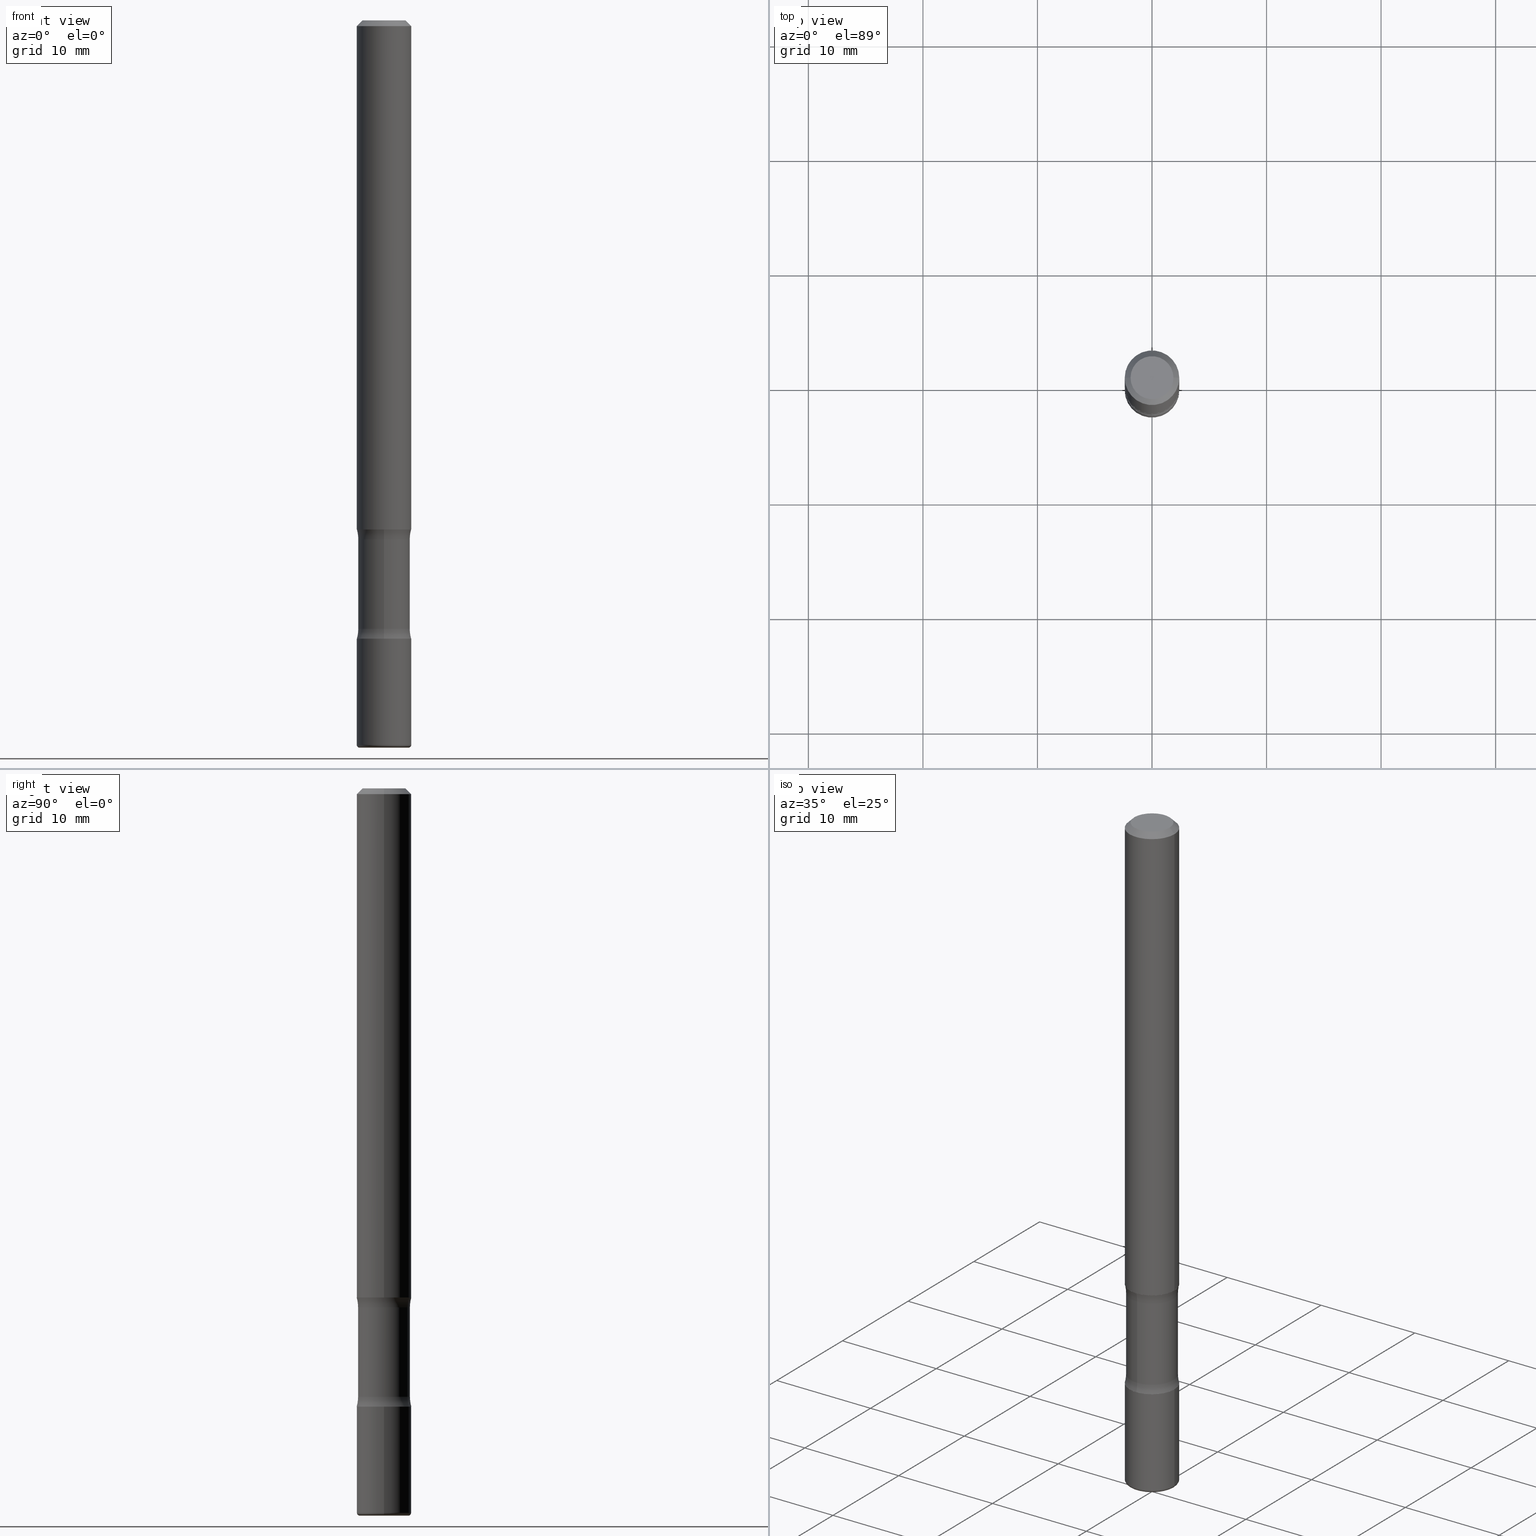
[diagram: canonical four-view strip — front | top / right | iso, engineering-drawing reading convention]
A machine part, canonical four-view strip (front | top / right | iso — engineering-drawing reading convention). The complete STEP part file that produces these views, byte-faithful:
ISO-10303-21;
HEADER;
FILE_DESCRIPTION (( 'STEP AP203' ),
    '1' );
FILE_NAME ('37772.STEP',
    '2024-03-02T00:11:34',
    ( '' ),
    ( '' ),
    'SwSTEP 2.0',
    'SolidWorks 2023',
    '' );
FILE_SCHEMA (( 'CONFIG_CONTROL_DESIGN' ));
ENDSEC;

DATA;
#1 = ADVANCED_FACE ( 'NONE', ( #195 ), #443, .T. ) ;
#2 = CARTESIAN_POINT ( 'NONE',  ( 5.110032292609207884E-29, -7.306245973522905960E-15, -2.091089789977795821 ) ) ;
#3 = DIRECTION ( 'NONE',  ( -2.445468806185136597E-29, 3.491481338843145583E-15, 1.000000000000000000 ) ) ;
#4 = VERTEX_POINT ( 'NONE', #237 ) ;
#5 = DIRECTION ( 'NONE',  ( 6.982962677686265922E-15, 1.000000000000000000, -2.913971193241879977E-15 ) ) ;
#6 = ADVANCED_FACE ( 'NONE', ( #497 ), #24, .T. ) ;
#7 = CARTESIAN_POINT ( 'NONE',  ( 5.113694852322927974E-29, -7.301000979552905916E-15, -2.091089789977795821 ) ) ;
#8 = CIRCLE ( 'NONE', #387, 0.09374999999999981959 ) ;
#9 = DIRECTION ( 'NONE',  ( -2.445468806185136877E-29, 3.491481338843145188E-15, 1.000000000000000000 ) ) ;
#10 = CIRCLE ( 'NONE', #114, 0.01000000000000008174 ) ;
#11 = EDGE_CURVE ( 'NONE', #555, #4, #404, .T. ) ;
#12 = DIRECTION ( 'NONE',  ( -2.445468806185136597E-29, 3.491481338843145583E-15, 1.000000000000000000 ) ) ;
#13 = DIRECTION ( 'NONE',  ( 2.438088387897960049E-29, -3.491481338843145188E-15, -1.000000000000000000 ) ) ;
#14 = ORIENTED_EDGE ( 'NONE', *, *, #361, .F. ) ;
#15 = EDGE_CURVE ( 'NONE', #337, #152, #106, .T. ) ;
#16 = CONICAL_SURFACE ( 'NONE', #261, 0.09374999999999981959, 0.7853981633974472798 ) ;
#17 = CC_DESIGN_APPROVAL ( #487, ( #310 ) ) ;
#18 = DESIGN_CONTEXT ( 'detailed design', #390, 'design' ) ;
#19 = CARTESIAN_POINT ( 'NONE',  ( 0.09375000000000002776, -6.546527510330876027E-16, 4.571415727308691207E-30 ) ) ;
#20 = EDGE_CURVE ( 'NONE', #336, #330, #447, .T. ) ;
#21 = DATE_TIME_ROLE ( 'creation_date' ) ;
#22 = CARTESIAN_POINT ( 'NONE',  ( 6.113672015462842613E-29, -8.728703347107864943E-15, -2.500000000000000000 ) ) ;
#23 = AXIS2_PLACEMENT_3D ( 'NONE', #166, #305, #386 ) ;
#24 = CYLINDRICAL_SURFACE ( 'NONE', #110, 0.09374999999999991673 ) ;
#25 = TOROIDAL_SURFACE ( 'NONE', #533, 0.08375000000000003275, 0.01000000000000008174 ) ;
#26 = DATE_AND_TIME ( #241, #358 ) ;
#27 = DIRECTION ( 'NONE',  ( -2.445468806185136597E-29, 3.491481338843145583E-15, 1.000000000000000000 ) ) ;
#28 = DIRECTION ( 'NONE',  ( -2.445468806185136597E-29, 3.491481338843145583E-15, 1.000000000000000000 ) ) ;
#29 = FACE_OUTER_BOUND ( 'NONE', #350, .T. ) ;
#30 = ORIENTED_EDGE ( 'NONE', *, *, #20, .T. ) ;
#31 = CARTESIAN_POINT ( 'NONE',  ( 5.196621213143415268E-29, -7.419397845041685201E-15, -2.125000000000000000 ) ) ;
#32 = CC_DESIGN_PERSON_AND_ORGANIZATION_ASSIGNMENT ( #411, #181, ( #235 ) ) ;
#33 = CIRCLE ( 'NONE', #234, 0.09375000000000002776 ) ;
#34 = ORIENTED_EDGE ( 'NONE', *, *, #82, .F. ) ;
#35 = DIRECTION ( 'NONE',  ( 6.982962677686265922E-15, 1.000000000000000000, -2.913971193241877611E-15 ) ) ;
#36 = EDGE_LOOP ( 'NONE', ( #312, #343, #318, #277 ) ) ;
#37 = DIRECTION ( 'NONE',  ( 2.553476385947133355E-29, -3.336808337214295667E-15, -1.000000000000000000 ) ) ;
#38 = EDGE_CURVE ( 'NONE', #423, #170, #216, .T. ) ;
#39 = EDGE_CURVE ( 'NONE', #205, #364, #121, .T. ) ;
#40 = ORIENTED_EDGE ( 'NONE', *, *, #168, .F. ) ;
#41 = PERSON_AND_ORGANIZATION_ROLE ( 'design_supplier' ) ;
#42 = AXIS2_PLACEMENT_3D ( 'NONE', #256, #292, #81 ) ;
#43 = FACE_OUTER_BOUND ( 'NONE', #366, .T. ) ;
#44 = DIRECTION ( 'NONE',  ( 6.982962677686265922E-15, 1.000000000000000000, -3.336808337214296061E-15 ) ) ;
#45 = ORIENTED_EDGE ( 'NONE', *, *, #536, .F. ) ;
#46 = DIRECTION ( 'NONE',  ( 6.982962677686265133E-15, 1.000000000000000000, -3.067338098149350666E-15 ) ) ;
#47 = CARTESIAN_POINT ( 'NONE',  ( -6.110131029264649859E-16, -0.08906250000000860700, -2.499999999999999556 ) ) ;
#48 = DATE_TIME_ROLE ( 'classification_date' ) ;
#49 = ORIENTED_EDGE ( 'NONE', *, *, #113, .F. ) ;
#50 = CARTESIAN_POINT ( 'NONE',  ( -0.09374999999999981959, 5.848231242562233185E-16, -0.02000000000000001776 ) ) ;
#51 = DATE_AND_TIME ( #460, #263 ) ;
#52 = AXIS2_PLACEMENT_3D ( 'NONE', #544, #445, #365 ) ;
#53 = VECTOR ( 'NONE', #512, 39.37007874015748143 ) ;
#54 = CARTESIAN_POINT ( 'NONE',  ( 8.726388948129611336E-30, -1.361158663068067946E-14, -2.125000000000000000 ) ) ;
#55 = FACE_OUTER_BOUND ( 'NONE', #280, .T. ) ;
#56 = DIRECTION ( 'NONE',  ( -2.445468806185136597E-29, 3.491481338843145583E-15, 1.000000000000000000 ) ) ;
#57 = CARTESIAN_POINT ( 'NONE',  ( -0.09375000000000005551, -8.027654718944337792E-15, -2.489999999999999769 ) ) ;
#58 = CARTESIAN_POINT ( 'NONE',  ( 4.279570410823988484E-29, -6.110092342975504671E-15, -1.750000000000000000 ) ) ;
#59 = EDGE_CURVE ( 'NONE', #127, #152, #482, .T. ) ;
#60 = CARTESIAN_POINT ( 'NONE',  ( 4.890937612370276662E-31, -6.982962677686296539E-17, -0.02000000000000001776 ) ) ;
#61 = DIRECTION ( 'NONE',  ( 6.982962677686265922E-15, 1.000000000000000000, -2.913971193241877611E-15 ) ) ;
#62 = CIRCLE ( 'NONE', #161, 0.07374999999999984346 ) ;
#63 = ORIENTED_EDGE ( 'NONE', *, *, #559, .T. ) ;
#64 = CIRCLE ( 'NONE', #491, 0.09375000000000009714 ) ;
#65 = EDGE_CURVE ( 'NONE', #93, #218, #511, .T. ) ;
#66 = ORIENTED_EDGE ( 'NONE', *, *, #73, .F. ) ;
#67 = CYLINDRICAL_SURFACE ( 'NONE', #146, 0.09375000000000002776 ) ;
#68 = DIRECTION ( 'NONE',  ( -2.445468806185136597E-29, 3.491481338843145583E-15, 1.000000000000000000 ) ) ;
#69 = AXIS2_PLACEMENT_3D ( 'NONE', #546, #105, #194 ) ;
#70 = CC_DESIGN_APPROVAL ( #406, ( #235 ) ) ;
#71 = CARTESIAN_POINT ( 'NONE',  ( 6.154174857873591467E-29, -8.670700971497045879E-15, -2.500000000000000000 ) ) ;
#72 = DIRECTION ( 'NONE',  ( 1.000000000000000000, -6.982962677686263555E-15, 0.000000000000000000 ) ) ;
#73 = EDGE_CURVE ( 'NONE', #183, #337, #272, .T. ) ;
#74 = ORIENTED_EDGE ( 'NONE', *, *, #15, .F. ) ;
#75 = DATE_AND_TIME ( #505, #79 ) ;
#76 = DIRECTION ( 'NONE',  ( 2.553476385947133355E-29, -3.336808337214295667E-15, -1.000000000000000000 ) ) ;
#77 = ORIENTED_EDGE ( 'NONE', *, *, #517, .T. ) ;
#78 = AXIS2_PLACEMENT_3D ( 'NONE', #2, #178, #46 ) ;
#79 = LOCAL_TIME ( 19, 11, 34.00000000000000000, #453 ) ;
#80 = ORIENTED_EDGE ( 'NONE', *, *, #321, .T. ) ;
#81 = DIRECTION ( 'NONE',  ( 6.860497997771531562E-15, 1.000000000000000000, 0.000000000000000000 ) ) ;
#82 = EDGE_CURVE ( 'NONE', #330, #152, #416, .T. ) ;
#83 = PERSON_AND_ORGANIZATION ( #224, #484 ) ;
#84 = ORIENTED_EDGE ( 'NONE', *, *, #433, .T. ) ;
#85 = VERTEX_POINT ( 'NONE', #477 ) ;
#86 = DIRECTION ( 'NONE',  ( 2.553476385947133355E-29, -3.336808337214295667E-15, -1.000000000000000000 ) ) ;
#87 = CARTESIAN_POINT ( 'NONE',  ( 0.09375000000000005551, -9.348441284752520009E-15, -2.489999999999999769 ) ) ;
#88 = AXIS2_PLACEMENT_3D ( 'NONE', #543, #304, #134 ) ;
#89 = ADVANCED_FACE ( 'NONE', ( #384 ), #531, .F. ) ;
#90 = CIRCLE ( 'NONE', #42, 0.1250000000000000278 ) ;
#91 = DIRECTION ( 'NONE',  ( 2.438088387897960049E-29, -3.491481338843145188E-15, -1.000000000000000000 ) ) ;
#92 = LINE ( 'NONE', #47, #522 ) ;
#93 = VERTEX_POINT ( 'NONE', #314 ) ;
#94 = CARTESIAN_POINT ( 'NONE',  ( 5.110032292609207884E-29, -7.306245973522905960E-15, -2.091089789977795821 ) ) ;
#95 = DIMENSIONAL_EXPONENTS ( 1.000000000000000000, 0.000000000000000000, 0.000000000000000000, 0.000000000000000000, 0.000000000000000000, 0.000000000000000000, 0.000000000000000000 ) ;
#96 = APPROVAL_STATUS ( 'not_yet_approved' ) ;
#97 = COORDINATED_UNIVERSAL_TIME_OFFSET ( 5, 0, .BEHIND. ) ;
#98 = ORIENTED_EDGE ( 'NONE', *, *, #257, .F. ) ;
#99 = AXIS2_PLACEMENT_3D ( 'NONE', #266, #177, #419 ) ;
#100 = DIRECTION ( 'NONE',  ( 1.000000000000000000, -6.982962677686265922E-15, 4.876176775795935793E-29 ) ) ;
#101 = ORIENTED_EDGE ( 'NONE', *, *, #285, .T. ) ;
#102 = ADVANCED_FACE ( 'NONE', ( #351 ), #448, .T. ) ;
#103 = CARTESIAN_POINT ( 'NONE',  ( -6.270923951087521301E-16, -0.08906250000000723310, -2.091089789977795377 ) ) ;
#104 = ORIENTED_EDGE ( 'NONE', *, *, #311, .F. ) ;
#105 = DIRECTION ( 'NONE',  ( 2.445468806185136597E-29, -3.491481338843145583E-15, -1.000000000000000000 ) ) ;
#106 = LINE ( 'NONE', #537, #399 ) ;
#107 = DIRECTION ( 'NONE',  ( -2.445468806185136877E-29, 3.491481338843145188E-15, 1.000000000000000000 ) ) ;
#108 = DATE_AND_TIME ( #530, #282 ) ;
#109 = CYLINDRICAL_SURFACE ( 'NONE', #493, 0.08906249999999993339 ) ;
#110 = AXIS2_PLACEMENT_3D ( 'NONE', #328, #68, #494 ) ;
#111 = CARTESIAN_POINT ( 'NONE',  ( 4.279570410823988484E-29, -6.110092342975504671E-15, -1.750000000000000000 ) ) ;
#112 = AXIS2_PLACEMENT_3D ( 'NONE', #171, #37, #557 ) ;
#113 = EDGE_CURVE ( 'NONE', #383, #170, #490, .T. ) ;
#114 = AXIS2_PLACEMENT_3D ( 'NONE', #514, #126, #428 ) ;
#115 = ORIENTED_EDGE ( 'NONE', *, *, #414, .F. ) ;
#116 = APPROVAL_ROLE ( '' ) ;
#117 = CARTESIAN_POINT ( 'NONE',  ( 1.494790448192267349E-15, 0.2140624999999926614, -2.091089789977796265 ) ) ;
#118 = CYLINDRICAL_SURFACE ( 'NONE', #112, 0.08906249999999993339 ) ;
#119 = DIRECTION ( 'NONE',  ( 1.000000000000000000, -6.982962677686267499E-15, 0.000000000000000000 ) ) ;
#120 = ORIENTED_EDGE ( 'NONE', *, *, #150, .F. ) ;
#121 = CIRCLE ( 'NONE', #429, 0.08375000000000003275 ) ;
#122 = CIRCLE ( 'NONE', #200, 0.08906249999999994726 ) ;
#123 = APPROVAL_PERSON_ORGANIZATION ( #159, #406, #116 ) ;
#124 = EDGE_LOOP ( 'NONE', ( #464, #303, #515, #558 ) ) ;
#125 = CC_DESIGN_DATE_AND_TIME_ASSIGNMENT ( #51, #48, ( #502 ) ) ;
#126 = DIRECTION ( 'NONE',  ( -6.982962677686266711E-15, -1.000000000000000000, 3.491481338843145583E-15 ) ) ;
#127 = VERTEX_POINT ( 'NONE', #265 ) ;
#128 = EDGE_LOOP ( 'NONE', ( #215, #45, #425, #101 ) ) ;
#129 = FACE_OUTER_BOUND ( 'NONE', #158, .T. ) ;
#130 = PRODUCT ( '37772', '37772', '', ( #510 ) ) ;
#131 = DIRECTION ( 'NONE',  ( 1.000000000000000000, -6.982962677686266711E-15, 4.876176775795935793E-29 ) ) ;
#132 = CC_DESIGN_DATE_AND_TIME_ASSIGNMENT ( #197, #21, ( #235 ) ) ;
#133 = DIRECTION ( 'NONE',  ( 2.553476385947132794E-29, -3.336808337214295667E-15, -1.000000000000000000 ) ) ;
#134 = DIRECTION ( 'NONE',  ( 1.000000000000000000, -6.982962677686266711E-15, 4.876176775795935793E-29 ) ) ;
#135 = AXIS2_PLACEMENT_3D ( 'NONE', #420, #470, #374 ) ;
#136 = CARTESIAN_POINT ( 'NONE',  ( 6.089217327400989947E-29, -8.693788533719431716E-15, -2.489999999999999769 ) ) ;
#137 = FACE_OUTER_BOUND ( 'NONE', #353, .T. ) ;
#138 = PLANE ( 'NONE',  #151 ) ;
#139 =( NAMED_UNIT ( * ) PLANE_ANGLE_UNIT ( ) SI_UNIT ( $, .RADIAN. ) );
#140 = PLANE ( 'NONE',  #273 ) ;
#141 = VERTEX_POINT ( 'NONE', #87 ) ;
#142 = EDGE_CURVE ( 'NONE', #364, #555, #410, .T. ) ;
#143 = CARTESIAN_POINT ( 'NONE',  ( 4.279570410823988484E-29, -6.110092342975504671E-15, -1.750000000000000000 ) ) ;
#144 = EDGE_LOOP ( 'NONE', ( #225, #239 ) ) ;
#145 = DIRECTION ( 'NONE',  ( -1.000000000000000000, 6.982962677686267499E-15, 0.000000000000000000 ) ) ;
#146 = AXIS2_PLACEMENT_3D ( 'NONE', #288, #444, #496 ) ;
#147 = VERTEX_POINT ( 'NONE', #345 ) ;
#148 = ORIENTED_EDGE ( 'NONE', *, *, #39, .F. ) ;
#149 = VERTEX_POINT ( 'NONE', #347 ) ;
#150 = EDGE_CURVE ( 'NONE', #170, #383, #335, .T. ) ;
#151 = AXIS2_PLACEMENT_3D ( 'NONE', #54, #13, #230 ) ;
#152 = VERTEX_POINT ( 'NONE', #50 ) ;
#153 = COORDINATED_UNIVERSAL_TIME_OFFSET ( 5, 0, .BEHIND. ) ;
#154 = DIRECTION ( 'NONE',  ( -2.445468806185136597E-29, 3.491481338843145583E-15, 1.000000000000000000 ) ) ;
#155 = ADVANCED_FACE ( 'NONE', ( #129 ), #308, .F. ) ;
#156 = CARTESIAN_POINT ( 'NONE',  ( 4.325656488947447574E-29, -6.281246590105103764E-15, -1.783910210022204623 ) ) ;
#157 = DIRECTION ( 'NONE',  ( -2.445468806185136597E-29, 3.491481338843145583E-15, 1.000000000000000000 ) ) ;
#158 = EDGE_LOOP ( 'NONE', ( #319, #270 ) ) ;
#159 = PERSON_AND_ORGANIZATION ( #224, #484 ) ;
#160 = CARTESIAN_POINT ( 'NONE',  ( -0.07374999999999984346, 5.499083108677921624E-16, -3.723527850031186263E-30 ) ) ;
#161 = AXIS2_PLACEMENT_3D ( 'NONE', #231, #3, #131 ) ;
#162 = MANIFOLD_SOLID_BREP ( 'Body-Move/Copy2[2]', #457 ) ;
#163 = APPROVAL_ROLE ( '' ) ;
#164 = EDGE_LOOP ( 'NONE', ( #66, #396, #213, #74 ) ) ;
#165 = DIRECTION ( 'NONE',  ( 2.553476385947133355E-29, -3.336808337214295667E-15, -1.000000000000000000 ) ) ;
#166 = CARTESIAN_POINT ( 'NONE',  ( 1.494790448192259658E-15, 0.2140624999999937161, -1.783910210022205289 ) ) ;
#167 = SHAPE_DEFINITION_REPRESENTATION ( #550, #196 ) ;
#168 = EDGE_CURVE ( 'NONE', #147, #423, #242, .T. ) ;
#169 = PERSON_AND_ORGANIZATION ( #224, #484 ) ;
#170 = VERTEX_POINT ( 'NONE', #103 ) ;
#171 = CARTESIAN_POINT ( 'NONE',  ( 6.154174857873591467E-29, -8.670700971497045879E-15, -2.500000000000000000 ) ) ;
#172 = MANIFOLD_SOLID_BREP ( 'Body-Move/Copy2[1]', #325 ) ;
#173 = LINE ( 'NONE', #339, #53 ) ;
#174 = TOROIDAL_SURFACE ( 'NONE', #483, 0.2140624999999999889, 0.1250000000000000278 ) ;
#175 = PERSON_AND_ORGANIZATION ( #224, #484 ) ;
#176 = ORIENTED_EDGE ( 'NONE', *, *, #551, .F. ) ;
#177 = DIRECTION ( 'NONE',  ( -2.445468806185136597E-29, 3.491481338843145583E-15, 1.000000000000000000 ) ) ;
#178 = DIRECTION ( 'NONE',  ( 2.553476385947133355E-29, -3.336808337214295667E-15, -1.000000000000000000 ) ) ;
#179 = EDGE_CURVE ( 'NONE', #141, #555, #553, .T. ) ;
#180 = DIRECTION ( 'NONE',  ( -2.445468806185136597E-29, 3.491481338843145583E-15, 1.000000000000000000 ) ) ;
#181 = PERSON_AND_ORGANIZATION_ROLE ( 'creator' ) ;
#182 = AXIS2_PLACEMENT_3D ( 'NONE', #472, #91, #422 ) ;
#183 = VERTEX_POINT ( 'NONE', #403 ) ;
#184 = AXIS2_PLACEMENT_3D ( 'NONE', #409, #206, #499 ) ;
#185 = DIRECTION ( 'NONE',  ( 2.553476385947133355E-29, -3.336808337214295667E-15, -1.000000000000000000 ) ) ;
#186 = ADVANCED_FACE ( 'NONE', ( #538 ), #430, .T. ) ;
#187 = DIRECTION ( 'NONE',  ( 2.553476385947133355E-29, -3.336808337214295667E-15, -1.000000000000000000 ) ) ;
#188 = AXIS2_PLACEMENT_3D ( 'NONE', #31, #28, #204 ) ;
#189 = CC_DESIGN_APPROVAL ( #440, ( #502 ) ) ;
#190 =( LENGTH_UNIT ( ) NAMED_UNIT ( * ) SI_UNIT ( $, .METRE. ) );
#191 = CARTESIAN_POINT ( 'NONE',  ( 6.089217327400989947E-29, -8.693788533719431716E-15, -2.489999999999999769 ) ) ;
#192 = ORIENTED_EDGE ( 'NONE', *, *, #207, .F. ) ;
#193 = DIRECTION ( 'NONE',  ( 2.553476385947133355E-29, -3.336808337214295667E-15, -1.000000000000000000 ) ) ;
#194 = DIRECTION ( 'NONE',  ( -1.000000000000000000, 6.982962677686267499E-15, 0.000000000000000000 ) ) ;
#195 = FACE_OUTER_BOUND ( 'NONE', #503, .T. ) ;
#196 = ADVANCED_BREP_SHAPE_REPRESENTATION ( '37772', ( #172, #162, #548, #135 ), #554 ) ;
#197 = DATE_AND_TIME ( #385, #513 ) ;
#198 = EDGE_LOOP ( 'NONE', ( #452, #283, #307, #389 ) ) ;
#199 = AXIS2_PLACEMENT_3D ( 'NONE', #247, #461, #119 ) ;
#200 = AXIS2_PLACEMENT_3D ( 'NONE', #156, #437, #489 ) ;
#201 = DIRECTION ( 'NONE',  ( -6.982962677686265922E-15, -1.000000000000000000, 3.336808337214295667E-15 ) ) ;
#202 = CARTESIAN_POINT ( 'NONE',  ( 6.113672015462842613E-29, -8.728703347107864943E-15, -2.500000000000000000 ) ) ;
#203 = ORIENTED_EDGE ( 'NONE', *, *, #368, .F. ) ;
#204 = DIRECTION ( 'NONE',  ( 1.000000000000000000, -6.982962677686270655E-15, 0.000000000000000000 ) ) ;
#205 = VERTEX_POINT ( 'NONE', #286 ) ;
#206 = DIRECTION ( 'NONE',  ( 2.553476385947133355E-29, -3.336808337214295667E-15, -1.000000000000000000 ) ) ;
#207 = EDGE_CURVE ( 'NONE', #85, #93, #122, .T. ) ;
#208 = CIRCLE ( 'NONE', #217, 0.09375000000000009714 ) ;
#209 = APPROVAL_STATUS ( 'not_yet_approved' ) ;
#210 = ORIENTED_EDGE ( 'NONE', *, *, #65, .F. ) ;
#211 = CARTESIAN_POINT ( 'NONE',  ( -0.09375000000000004163, -2.423827170101085722E-15, -1.750000000000000000 ) ) ;
#212 = DIRECTION ( 'NONE',  ( 2.553476385947133355E-29, -3.336808337214295667E-15, -1.000000000000000000 ) ) ;
#213 = ORIENTED_EDGE ( 'NONE', *, *, #59, .T. ) ;
#214 = PERSON_AND_ORGANIZATION_ROLE ( 'design_owner' ) ;
#215 = ORIENTED_EDGE ( 'NONE', *, *, #300, .F. ) ;
#216 = CIRCLE ( 'NONE', #52, 0.1250000000000000278 ) ;
#217 = AXIS2_PLACEMENT_3D ( 'NONE', #545, #367, #35 ) ;
#218 = VERTEX_POINT ( 'NONE', #442 ) ;
#219 = EDGE_CURVE ( 'NONE', #141, #456, #397, .T. ) ;
#220 = CARTESIAN_POINT ( 'NONE',  ( -0.08375000000000003275, -8.098708992520347873E-15, -2.489999999999999769 ) ) ;
#221 = SECURITY_CLASSIFICATION_LEVEL ( 'unclassified' ) ;
#222 = CYLINDRICAL_SURFACE ( 'NONE', #393, 0.09374999999999991673 ) ;
#223 = CARTESIAN_POINT ( 'NONE',  ( 5.196621213143415268E-29, -7.419397845041685201E-15, -2.125000000000000000 ) ) ;
#224 = PERSON ( 'UNSPECIFIED', 'UNSPECIFIED', 'UNSPECIFIED', ('UNSPECIFIED'), ('UNSPECIFIED'), ('UNSPECIFIED') ) ;
#225 = ORIENTED_EDGE ( 'NONE', *, *, #20, .F. ) ;
#226 = DIRECTION ( 'NONE',  ( 1.000000000000000000, -6.982962677686270655E-15, 0.000000000000000000 ) ) ;
#227 = EDGE_CURVE ( 'NONE', #364, #205, #293, .T. ) ;
#228 = DIRECTION ( 'NONE',  ( -2.445468806185136597E-29, 3.491481338843145583E-15, 1.000000000000000000 ) ) ;
#229 = TOROIDAL_SURFACE ( 'NONE', #184, 0.2140624999999999889, 0.1250000000000000278 ) ;
#230 = DIRECTION ( 'NONE',  ( -1.000000000000000000, 6.982962677686265922E-15, -4.876176775795935793E-29 ) ) ;
#231 = CARTESIAN_POINT ( 'NONE',  ( 0.000000000000000000, 0.000000000000000000, 0.000000000000000000 ) ) ;
#232 = APPROVAL_DATE_TIME ( #108, #440 ) ;
#233 = AXIS2_PLACEMENT_3D ( 'NONE', #111, #27, #398 ) ;
#234 = AXIS2_PLACEMENT_3D ( 'NONE', #465, #12, #528 ) ;
#235 = PRODUCT_DEFINITION ( 'UNKNOWN', '', #310, #18 ) ;
#236 = ORIENTED_EDGE ( 'NONE', *, *, #113, .T. ) ;
#237 = CARTESIAN_POINT ( 'NONE',  ( -0.09375000000000002776, -7.390459374605464534E-15, -2.125000000000000000 ) ) ;
#238 = DIRECTION ( 'NONE',  ( -2.445468806185136877E-29, 3.491481338843145188E-15, 1.000000000000000000 ) ) ;
#239 = ORIENTED_EDGE ( 'NONE', *, *, #498, .F. ) ;
#240 = ADVANCED_FACE ( 'NONE', ( #436 ), #25, .T. ) ;
#241 = CALENDAR_DATE ( 2024, 1, 3 ) ;
#242 = CIRCLE ( 'NONE', #342, 0.09375000000000002776 ) ;
#243 = DIRECTION ( 'NONE',  ( -2.445468806185136597E-29, 3.491481338843145583E-15, 1.000000000000000000 ) ) ;
#244 = DIRECTION ( 'NONE',  ( 2.438088387897960049E-29, -3.491481338843145188E-15, -1.000000000000000000 ) ) ;
#245 = DIRECTION ( 'NONE',  ( -2.445468806185136597E-29, 3.491481338843145583E-15, 1.000000000000000000 ) ) ;
#246 = FACE_OUTER_BOUND ( 'NONE', #332, .T. ) ;
#247 = CARTESIAN_POINT ( 'NONE',  ( 4.890937612370276662E-31, -6.982962677686296539E-17, -0.02000000000000001776 ) ) ;
#248 = ORIENTED_EDGE ( 'NONE', *, *, #59, .F. ) ;
#249 = APPROVAL_DATE_TIME ( #75, #406 ) ;
#250 = FACE_OUTER_BOUND ( 'NONE', #267, .T. ) ;
#251 = APPLICATION_PROTOCOL_DEFINITION ( 'international standard', 'config_control_design', 1994, #356 ) ;
#252 = ORIENTED_EDGE ( 'NONE', *, *, #355, .F. ) ;
#253 = VECTOR ( 'NONE', #9, 39.37007874015748143 ) ;
#254 = CIRCLE ( 'NONE', #255, 0.09375000000000002776 ) ;
#255 = AXIS2_PLACEMENT_3D ( 'NONE', #488, #212, #552 ) ;
#256 = CARTESIAN_POINT ( 'NONE',  ( -1.468575352647924772E-15, -0.2140625000000062339, -1.783910210022203513 ) ) ;
#257 = EDGE_CURVE ( 'NONE', #336, #127, #521, .T. ) ;
#258 = CC_DESIGN_PERSON_AND_ORGANIZATION_ASSIGNMENT ( #520, #462, ( #502 ) ) ;
#259 = ORIENTED_EDGE ( 'NONE', *, *, #536, .T. ) ;
#260 = FACE_OUTER_BOUND ( 'NONE', #36, .T. ) ;
#261 = AXIS2_PLACEMENT_3D ( 'NONE', #60, #526, #145 ) ;
#262 = FACE_OUTER_BOUND ( 'NONE', #144, .T. ) ;
#263 = LOCAL_TIME ( 19, 11, 34.00000000000000000, #295 ) ;
#264 = CARTESIAN_POINT ( 'NONE',  ( 6.089217327400989947E-29, -8.693788533719431716E-15, -2.489999999999999769 ) ) ;
#265 = CARTESIAN_POINT ( 'NONE',  ( 0.09374999999999981959, -7.130013140679428044E-16, -0.02000000000000001776 ) ) ;
#266 = CARTESIAN_POINT ( 'NONE',  ( 0.000000000000000000, 0.000000000000000000, 0.000000000000000000 ) ) ;
#267 = EDGE_LOOP ( 'NONE', ( #259, #84, #49, #203 ) ) ;
#268 = CARTESIAN_POINT ( 'NONE',  ( -0.09374999999999991673, 6.661338147750933326E-16, -4.611501647113969791E-30 ) ) ;
#269 = ADVANCED_FACE ( 'NONE', ( #352 ), #138, .F. ) ;
#270 = ORIENTED_EDGE ( 'NONE', *, *, #73, .T. ) ;
#271 = DIRECTION ( 'NONE',  ( 6.982962677686265133E-15, 1.000000000000000000, -3.067338098149349877E-15 ) ) ;
#272 = CIRCLE ( 'NONE', #88, 0.07374999999999984346 ) ;
#273 = AXIS2_PLACEMENT_3D ( 'NONE', #58, #432, #100 ) ;
#274 = ORIENTED_EDGE ( 'NONE', *, *, #142, .F. ) ;
#275 = APPROVAL_PERSON_ORGANIZATION ( #169, #487, #163 ) ;
#276 = CARTESIAN_POINT ( 'NONE',  ( 6.089217327400989947E-29, -8.693788533719431716E-15, -2.489999999999999769 ) ) ;
#277 = ORIENTED_EDGE ( 'NONE', *, *, #431, .F. ) ;
#278 = CYLINDRICAL_SURFACE ( 'NONE', #99, 0.09375000000000002776 ) ;
#279 = ADVANCED_FACE ( 'NONE', ( #260 ), #229, .F. ) ;
#280 = EDGE_LOOP ( 'NONE', ( #421, #316, #14, #294 ) ) ;
#281 = AXIS2_PLACEMENT_3D ( 'NONE', #220, #519, #378 ) ;
#282 = LOCAL_TIME ( 19, 11, 34.00000000000000000, #284 ) ;
#283 = ORIENTED_EDGE ( 'NONE', *, *, #355, .T. ) ;
#284 = COORDINATED_UNIVERSAL_TIME_OFFSET ( 5, 0, .BEHIND. ) ;
#285 = EDGE_CURVE ( 'NONE', #218, #149, #208, .T. ) ;
#286 = CARTESIAN_POINT ( 'NONE',  ( 0.08375000000000003275, -9.313526471364089937E-15, -2.500000000000000000 ) ) ;
#287 = DIRECTION ( 'NONE',  ( -0.7071067811865467956, 2.468850131082249172E-15, -0.7071067811865482389 ) ) ;
#288 = CARTESIAN_POINT ( 'NONE',  ( 0.000000000000000000, 0.000000000000000000, 0.000000000000000000 ) ) ;
#289 = DIRECTION ( 'NONE',  ( 1.000000000000000000, -6.982962677686263555E-15, 0.000000000000000000 ) ) ;
#290 = CARTESIAN_POINT ( 'NONE',  ( -0.09375000000000002776, 6.661338147750941215E-16, -4.611501647113975397E-30 ) ) ;
#291 = CC_DESIGN_PERSON_AND_ORGANIZATION_ASSIGNMENT ( #468, #41, ( #310 ) ) ;
#292 = DIRECTION ( 'NONE',  ( 1.000000000000000000, -6.860497997771530774E-15, 4.842693077587735886E-29 ) ) ;
#293 = CIRCLE ( 'NONE', #439, 0.08375000000000003275 ) ;
#294 = ORIENTED_EDGE ( 'NONE', *, *, #219, .F. ) ;
#295 = COORDINATED_UNIVERSAL_TIME_OFFSET ( 5, 0, .BEHIND. ) ;
#296 = EDGE_LOOP ( 'NONE', ( #463, #80 ) ) ;
#297 = VECTOR ( 'NONE', #107, 39.37007874015748143 ) ;
#298 = CC_DESIGN_SECURITY_CLASSIFICATION ( #502, ( #310 ) ) ;
#299 = EDGE_LOOP ( 'NONE', ( #274, #438, #63, #252 ) ) ;
#300 = EDGE_CURVE ( 'NONE', #85, #149, #90, .T. ) ;
#301 = PERSON_AND_ORGANIZATION_ROLE ( 'creator' ) ;
#302 = PRODUCT_RELATED_PRODUCT_CATEGORY ( 'detail', '', ( #130 ) ) ;
#303 = ORIENTED_EDGE ( 'NONE', *, *, #142, .T. ) ;
#304 = DIRECTION ( 'NONE',  ( -2.445468806185136597E-29, 3.491481338843145583E-15, 1.000000000000000000 ) ) ;
#305 = DIRECTION ( 'NONE',  ( -1.000000000000000000, 6.982962677686265922E-15, -4.883557194083112901E-29 ) ) ;
#306 = DIRECTION ( 'NONE',  ( 1.000000000000000000, -6.982962677686266711E-15, 4.876176775795935793E-29 ) ) ;
#307 = ORIENTED_EDGE ( 'NONE', *, *, #219, .T. ) ;
#308 = PLANE ( 'NONE',  #182 ) ;
#309 = AXIS2_PLACEMENT_3D ( 'NONE', #117, #480, #474 ) ;
#310 = PRODUCT_DEFINITION_FORMATION_WITH_SPECIFIED_SOURCE ( 'ANY', '', #130, .NOT_KNOWN. ) ;
#311 = EDGE_CURVE ( 'NONE', #152, #127, #8, .T. ) ;
#312 = ORIENTED_EDGE ( 'NONE', *, *, #517, .F. ) ;
#313 = UNCERTAINTY_MEASURE_WITH_UNIT (LENGTH_MEASURE( 1.000000000000000082E-05 ), #535, 'distance_accuracy_value', 'NONE');
#314 = CARTESIAN_POINT ( 'NONE',  ( 6.219201134814759246E-16, 0.08906249999999366063, -1.783910210022204845 ) ) ;
#315 = CARTESIAN_POINT ( 'NONE',  ( 6.219201134814836160E-16, 0.08906249999999261979, -2.091089789977795821 ) ) ;
#316 = ORIENTED_EDGE ( 'NONE', *, *, #11, .T. ) ;
#317 = DIRECTION ( 'NONE',  ( 1.000000000000000000, -6.982962677686265133E-15, 4.883557194083112340E-29 ) ) ;
#318 = ORIENTED_EDGE ( 'NONE', *, *, #150, .T. ) ;
#319 = ORIENTED_EDGE ( 'NONE', *, *, #414, .T. ) ;
#320 = ORIENTED_EDGE ( 'NONE', *, *, #551, .T. ) ;
#321 = EDGE_CURVE ( 'NONE', #4, #456, #541, .T. ) ;
#322 = DIRECTION ( 'NONE',  ( 1.000000000000000000, -6.982962677686270655E-15, 0.000000000000000000 ) ) ;
#323 = ORIENTED_EDGE ( 'NONE', *, *, #257, .T. ) ;
#324 = CARTESIAN_POINT ( 'NONE',  ( 4.279570410823988484E-29, -6.110092342975504671E-15, -1.750000000000000000 ) ) ;
#325 = CLOSED_SHELL ( 'NONE', ( #405, #102, #1, #240, #495, #269 ) ) ;
#326 = ORIENTED_EDGE ( 'NONE', *, *, #38, .F. ) ;
#327 = AXIS2_PLACEMENT_3D ( 'NONE', #94, #524, #466 ) ;
#328 = CARTESIAN_POINT ( 'NONE',  ( 0.000000000000000000, 0.000000000000000000, 0.000000000000000000 ) ) ;
#329 = FACE_OUTER_BOUND ( 'NONE', #198, .T. ) ;
#330 = VERTEX_POINT ( 'NONE', #211 ) ;
#331 = CARTESIAN_POINT ( 'NONE',  ( 8.726388948129611336E-30, -1.361158663068067946E-14, -2.125000000000000000 ) ) ;
#332 = EDGE_LOOP ( 'NONE', ( #540, #77 ) ) ;
#333 = AXIS2_PLACEMENT_3D ( 'NONE', #202, #244, #451 ) ;
#334 = APPROVAL_STATUS ( 'not_yet_approved' ) ;
#335 = CIRCLE ( 'NONE', #78, 0.08906249999999993339 ) ;
#336 = VERTEX_POINT ( 'NONE', #549 ) ;
#337 = VERTEX_POINT ( 'NONE', #160 ) ;
#338 = ADVANCED_FACE ( 'NONE', ( #454 ), #501, .F. ) ;
#339 = CARTESIAN_POINT ( 'NONE',  ( 0.09374999999999981959, -7.130013140679428044E-16, -0.02000000000000001776 ) ) ;
#340 = VECTOR ( 'NONE', #427, 39.37007874015748143 ) ;
#341 = ADVANCED_FACE ( 'NONE', ( #250 ), #118, .T. ) ;
#342 = AXIS2_PLACEMENT_3D ( 'NONE', #223, #380, #5 ) ;
#343 = ORIENTED_EDGE ( 'NONE', *, *, #38, .T. ) ;
#344 = CARTESIAN_POINT ( 'NONE',  ( 6.219201134814940684E-16, 0.08906249999999125977, -2.500000000000000444 ) ) ;
#345 = CARTESIAN_POINT ( 'NONE',  ( 6.546527510331397661E-16, 0.09374999999999261702, -2.125000000000000444 ) ) ;
#346 = EDGE_LOOP ( 'NONE', ( #34, #476, #323, #104 ) ) ;
#347 = CARTESIAN_POINT ( 'NONE',  ( -6.431716872910389785E-16, -0.09375000000000620337, -1.749999999999999556 ) ) ;
#348 = AXIS2_PLACEMENT_3D ( 'NONE', #143, #133, #426 ) ;
#349 = CC_DESIGN_PERSON_AND_ORGANIZATION_ASSIGNMENT ( #175, #214, ( #130 ) ) ;
#350 = EDGE_LOOP ( 'NONE', ( #479, #375, #492, #120 ) ) ;
#351 = FACE_OUTER_BOUND ( 'NONE', #124, .T. ) ;
#352 = FACE_OUTER_BOUND ( 'NONE', #296, .T. ) ;
#353 = EDGE_LOOP ( 'NONE', ( #408, #176 ) ) ;
#354 = EDGE_CURVE ( 'NONE', #183, #127, #173, .T. ) ;
#355 = EDGE_CURVE ( 'NONE', #555, #141, #363, .T. ) ;
#356 = APPLICATION_CONTEXT ( 'configuration controlled 3d designs of mechanical parts and assemblies' ) ;
#357 = AXIS2_PLACEMENT_3D ( 'NONE', #191, #362, #322 ) ;
#358 = LOCAL_TIME ( 19, 11, 34.00000000000000000, #153 ) ;
#359 = CARTESIAN_POINT ( 'NONE',  ( -6.431716872910290192E-16, -0.09375000000000745237, -2.125000000000000000 ) ) ;
#360 = DIRECTION ( 'NONE',  ( 6.982962677686265133E-15, 1.000000000000000000, -6.134676196298701332E-15 ) ) ;
#361 = EDGE_CURVE ( 'NONE', #456, #4, #33, .T. ) ;
#362 = DIRECTION ( 'NONE',  ( -2.445468806185136597E-29, 3.491481338843145583E-15, 1.000000000000000000 ) ) ;
#363 = CIRCLE ( 'NONE', #475, 0.09375000000000002776 ) ;
#364 = VERTEX_POINT ( 'NONE', #434 ) ;
#365 = DIRECTION ( 'NONE',  ( 6.860497997771531562E-15, 1.000000000000000000, 0.000000000000000000 ) ) ;
#366 = EDGE_LOOP ( 'NONE', ( #485, #115, #527, #518 ) ) ;
#367 = DIRECTION ( 'NONE',  ( 2.553476385947133355E-29, -3.336808337214295667E-15, -1.000000000000000000 ) ) ;
#368 = EDGE_CURVE ( 'NONE', #93, #383, #560, .T. ) ;
#369 = ORIENTED_EDGE ( 'NONE', *, *, #431, .T. ) ;
#370 = VECTOR ( 'NONE', #238, 39.37007874015748143 ) ;
#371 = EDGE_LOOP ( 'NONE', ( #192, #373, #320, #210 ) ) ;
#372 = ADVANCED_FACE ( 'NONE', ( #43 ), #16, .T. ) ;
#373 = ORIENTED_EDGE ( 'NONE', *, *, #300, .T. ) ;
#374 = DIRECTION ( 'NONE',  ( 1.000000000000000000, 0.000000000000000000, 0.000000000000000000 ) ) ;
#375 = ORIENTED_EDGE ( 'NONE', *, *, #207, .T. ) ;
#376 = CIRCLE ( 'NONE', #534, 0.09375000000000004163 ) ;
#377 = EDGE_LOOP ( 'NONE', ( #30, #508, #248, #98 ) ) ;
#378 = DIRECTION ( 'NONE',  ( -1.000000000000000000, 7.105427357600964782E-15, 0.000000000000000000 ) ) ;
#379 = CARTESIAN_POINT ( 'NONE',  ( 0.000000000000000000, 0.000000000000000000, 0.000000000000000000 ) ) ;
#380 = DIRECTION ( 'NONE',  ( 2.553476385947133355E-29, -3.336808337214295667E-15, -1.000000000000000000 ) ) ;
#381 = DIRECTION ( 'NONE',  ( 2.553476385947133355E-29, -3.336808337214295667E-15, -1.000000000000000000 ) ) ;
#382 = PERSON_AND_ORGANIZATION ( #224, #484 ) ;
#383 = VERTEX_POINT ( 'NONE', #315 ) ;
#384 = FACE_OUTER_BOUND ( 'NONE', #458, .T. ) ;
#385 = CALENDAR_DATE ( 2024, 1, 3 ) ;
#386 = DIRECTION ( 'NONE',  ( -6.982962677686265922E-15, -1.000000000000000000, 0.000000000000000000 ) ) ;
#387 = AXIS2_PLACEMENT_3D ( 'NONE', #449, #245, #413 ) ;
#388 = CIRCLE ( 'NONE', #418, 0.08906249999999994726 ) ;
#389 = ORIENTED_EDGE ( 'NONE', *, *, #321, .F. ) ;
#390 = APPLICATION_CONTEXT ( 'configuration controlled 3d designs of mechanical parts and assemblies' ) ;
#391 = ADVANCED_FACE ( 'NONE', ( #435 ), #222, .T. ) ;
#392 = APPROVAL_ROLE ( '' ) ;
#393 = AXIS2_PLACEMENT_3D ( 'NONE', #379, #228, #306 ) ;
#394 = ADVANCED_FACE ( 'NONE', ( #262 ), #140, .F. ) ;
#395 = DIRECTION ( 'NONE',  ( 2.553476385947133355E-29, -3.336808337214295667E-15, -1.000000000000000000 ) ) ;
#396 = ORIENTED_EDGE ( 'NONE', *, *, #354, .T. ) ;
#397 = LINE ( 'NONE', #19, #370 ) ;
#398 = DIRECTION ( 'NONE',  ( 1.000000000000000000, -6.982962677686269866E-15, 0.000000000000000000 ) ) ;
#399 = VECTOR ( 'NONE', #287, 39.37007874015748143 ) ;
#400 = CIRCLE ( 'NONE', #309, 0.1250000000000000278 ) ;
#401 = AXIS2_PLACEMENT_3D ( 'NONE', #331, #407, #201 ) ;
#402 = PLANE ( 'NONE',  #401 ) ;
#403 = CARTESIAN_POINT ( 'NONE',  ( 0.07374999999999984346, -6.094815207017961198E-16, 3.931526600461598749E-30 ) ) ;
#404 = LINE ( 'NONE', #290, #297 ) ;
#405 = ADVANCED_FACE ( 'NONE', ( #55 ), #278, .T. ) ;
#406 = APPROVAL ( #334, 'UNSPECIFIED' ) ;
#407 = DIRECTION ( 'NONE',  ( -2.553476385947132794E-29, 3.336808337214295667E-15, 1.000000000000000000 ) ) ;
#408 = ORIENTED_EDGE ( 'NONE', *, *, #285, .F. ) ;
#409 = CARTESIAN_POINT ( 'NONE',  ( 5.113694852322927974E-29, -7.301000979552905916E-15, -2.091089789977795821 ) ) ;
#410 = CIRCLE ( 'NONE', #281, 0.01000000000000008174 ) ;
#411 = PERSON_AND_ORGANIZATION ( #224, #484 ) ;
#412 = AXIS2_PLACEMENT_3D ( 'NONE', #136, #180, #317 ) ;
#413 = DIRECTION ( 'NONE',  ( 1.000000000000000000, -6.982962677686267499E-15, 0.000000000000000000 ) ) ;
#414 = EDGE_CURVE ( 'NONE', #337, #183, #62, .T. ) ;
#415 = ORIENTED_EDGE ( 'NONE', *, *, #227, .F. ) ;
#416 = LINE ( 'NONE', #268, #340 ) ;
#417 = VECTOR ( 'NONE', #86, 39.37007874015748143 ) ;
#418 = AXIS2_PLACEMENT_3D ( 'NONE', #478, #395, #271 ) ;
#419 = DIRECTION ( 'NONE',  ( 1.000000000000000000, -6.982962677686265922E-15, 4.876176775795935793E-29 ) ) ;
#420 = CARTESIAN_POINT ( 'NONE',  ( 0.000000000000000000, 0.000000000000000000, 0.000000000000000000 ) ) ;
#421 = ORIENTED_EDGE ( 'NONE', *, *, #179, .T. ) ;
#422 = DIRECTION ( 'NONE',  ( -1.000000000000000000, 6.982962677686265922E-15, -4.876176775795935793E-29 ) ) ;
#423 = VERTEX_POINT ( 'NONE', #359 ) ;
#424 = DIRECTION ( 'NONE',  ( 1.000000000000000000, -6.982962677686265133E-15, 4.883557194083112340E-29 ) ) ;
#425 = ORIENTED_EDGE ( 'NONE', *, *, #65, .T. ) ;
#426 = DIRECTION ( 'NONE',  ( 6.982962677686265922E-15, 1.000000000000000000, -3.336808337214295667E-15 ) ) ;
#427 = DIRECTION ( 'NONE',  ( -2.445468806185136877E-29, 3.491481338843145188E-15, 1.000000000000000000 ) ) ;
#428 = DIRECTION ( 'NONE',  ( 1.000000000000000000, -6.982962677686275388E-15, 0.000000000000000000 ) ) ;
#429 = AXIS2_PLACEMENT_3D ( 'NONE', #547, #157, #72 ) ;
#430 = CONICAL_SURFACE ( 'NONE', #69, 0.09374999999999981959, 0.7853981633974472798 ) ;
#431 = EDGE_CURVE ( 'NONE', #147, #383, #400, .T. ) ;
#432 = DIRECTION ( 'NONE',  ( -2.438088387897960049E-29, 3.491481338843145188E-15, 1.000000000000000000 ) ) ;
#433 = EDGE_CURVE ( 'NONE', #85, #170, #92, .T. ) ;
#434 = CARTESIAN_POINT ( 'NONE',  ( -0.08375000000000003275, -8.080639262426558657E-15, -2.500000000000000000 ) ) ;
#435 = FACE_OUTER_BOUND ( 'NONE', #377, .T. ) ;
#436 = FACE_OUTER_BOUND ( 'NONE', #299, .T. ) ;
#437 = DIRECTION ( 'NONE',  ( 2.553476385947133355E-29, -3.336808337214295667E-15, -1.000000000000000000 ) ) ;
#438 = ORIENTED_EDGE ( 'NONE', *, *, #227, .T. ) ;
#439 = AXIS2_PLACEMENT_3D ( 'NONE', #22, #154, #289 ) ;
#440 = APPROVAL ( #96, 'UNSPECIFIED' ) ;
#441 = FACE_OUTER_BOUND ( 'NONE', #128, .T. ) ;
#442 = CARTESIAN_POINT ( 'NONE',  ( 6.546527510331302998E-16, 0.09374999999999390765, -1.750000000000000222 ) ) ;
#443 = PLANE ( 'NONE',  #333 ) ;
#444 = DIRECTION ( 'NONE',  ( -2.445468806185136597E-29, 3.491481338843145583E-15, 1.000000000000000000 ) ) ;
#445 = DIRECTION ( 'NONE',  ( 1.000000000000000000, -6.860497997771530774E-15, 4.842693077587735886E-29 ) ) ;
#446 = ADVANCED_FACE ( 'NONE', ( #137 ), #529, .F. ) ;
#447 = CIRCLE ( 'NONE', #233, 0.09375000000000004163 ) ;
#448 = TOROIDAL_SURFACE ( 'NONE', #412, 0.08375000000000003275, 0.01000000000000008174 ) ;
#449 = CARTESIAN_POINT ( 'NONE',  ( 4.890937612370276662E-31, -6.982962677686296539E-17, -0.02000000000000001776 ) ) ;
#450 = DIRECTION ( 'NONE',  ( 6.982962677686265922E-15, 1.000000000000000000, -3.336808337214296061E-15 ) ) ;
#451 = DIRECTION ( 'NONE',  ( -1.000000000000000000, 6.982962677686265922E-15, -4.876176775795935793E-29 ) ) ;
#452 = ORIENTED_EDGE ( 'NONE', *, *, #11, .F. ) ;
#453 = COORDINATED_UNIVERSAL_TIME_OFFSET ( 5, 0, .BEHIND. ) ;
#454 = FACE_OUTER_BOUND ( 'NONE', #371, .T. ) ;
#455 = CARTESIAN_POINT ( 'NONE',  ( 4.338651280918389502E-29, -6.262637308385086581E-15, -1.783910210022204401 ) ) ;
#456 = VERTEX_POINT ( 'NONE', #507 ) ;
#457 = CLOSED_SHELL ( 'NONE', ( #391, #186, #372, #155, #394, #6 ) ) ;
#458 = EDGE_LOOP ( 'NONE', ( #326, #40, #369, #236 ) ) ;
#459 = AXIS2_PLACEMENT_3D ( 'NONE', #556, #165, #506 ) ;
#460 = CALENDAR_DATE ( 2024, 1, 3 ) ;
#461 = DIRECTION ( 'NONE',  ( -2.445468806185136597E-29, 3.491481338843145583E-15, 1.000000000000000000 ) ) ;
#462 = PERSON_AND_ORGANIZATION_ROLE ( 'classification_officer' ) ;
#463 = ORIENTED_EDGE ( 'NONE', *, *, #361, .T. ) ;
#464 = ORIENTED_EDGE ( 'NONE', *, *, #39, .T. ) ;
#465 = CARTESIAN_POINT ( 'NONE',  ( 5.196621213143415268E-29, -7.419397845041685201E-15, -2.125000000000000000 ) ) ;
#466 = DIRECTION ( 'NONE',  ( 6.982962677686265133E-15, 1.000000000000000000, -3.067338098149350666E-15 ) ) ;
#467 = CARTESIAN_POINT ( 'NONE',  ( 0.09374999999999991673, -6.546527510330869125E-16, 4.571415727308685602E-30 ) ) ;
#468 = PERSON_AND_ORGANIZATION ( #224, #484 ) ;
#469 = ADVANCED_FACE ( 'NONE', ( #441 ), #174, .F. ) ;
#470 = DIRECTION ( 'NONE',  ( 0.000000000000000000, 0.000000000000000000, 1.000000000000000000 ) ) ;
#471 = CC_DESIGN_PERSON_AND_ORGANIZATION_ASSIGNMENT ( #83, #301, ( #310 ) ) ;
#472 = CARTESIAN_POINT ( 'NONE',  ( 5.149934974793610063E-16, 0.07374999999999984346, -2.574967487396814399E-16 ) ) ;
#473 = AXIS2_PLACEMENT_3D ( 'NONE', #7, #185, #44 ) ;
#474 = DIRECTION ( 'NONE',  ( -6.982962677686265922E-15, -1.000000000000000000, 0.000000000000000000 ) ) ;
#475 = AXIS2_PLACEMENT_3D ( 'NONE', #264, #523, #226 ) ;
#476 = ORIENTED_EDGE ( 'NONE', *, *, #498, .T. ) ;
#477 = CARTESIAN_POINT ( 'NONE',  ( -6.270923951087611034E-16, -0.08906250000000623390, -1.783910210022204401 ) ) ;
#478 = CARTESIAN_POINT ( 'NONE',  ( 4.325656488947447574E-29, -6.281246590105103764E-15, -1.783910210022204623 ) ) ;
#479 = ORIENTED_EDGE ( 'NONE', *, *, #433, .F. ) ;
#480 = DIRECTION ( 'NONE',  ( -1.000000000000000000, 6.982962677686265922E-15, -4.883557194083112901E-29 ) ) ;
#481 = APPLICATION_PROTOCOL_DEFINITION ( 'international standard', 'config_control_design', 1994, #390 ) ;
#482 = CIRCLE ( 'NONE', #199, 0.09374999999999981959 ) ;
#483 = AXIS2_PLACEMENT_3D ( 'NONE', #455, #193, #450 ) ;
#484 = ORGANIZATION ( 'UNSPECIFIED', 'UNSPECIFIED', '' ) ;
#485 = ORIENTED_EDGE ( 'NONE', *, *, #354, .F. ) ;
#486 =( NAMED_UNIT ( * ) SI_UNIT ( $, .STERADIAN. ) SOLID_ANGLE_UNIT ( ) );
#487 = APPROVAL ( #209, 'UNSPECIFIED' ) ;
#488 = CARTESIAN_POINT ( 'NONE',  ( 5.196621213143415268E-29, -7.419397845041685201E-15, -2.125000000000000000 ) ) ;
#489 = DIRECTION ( 'NONE',  ( 6.982962677686265133E-15, 1.000000000000000000, -3.067338098149349877E-15 ) ) ;
#490 = CIRCLE ( 'NONE', #327, 0.08906249999999993339 ) ;
#491 = AXIS2_PLACEMENT_3D ( 'NONE', #525, #187, #61 ) ;
#492 = ORIENTED_EDGE ( 'NONE', *, *, #368, .T. ) ;
#493 = AXIS2_PLACEMENT_3D ( 'NONE', #71, #76, #360 ) ;
#494 = DIRECTION ( 'NONE',  ( 1.000000000000000000, -6.982962677686266711E-15, 4.876176775795935793E-29 ) ) ;
#495 = ADVANCED_FACE ( 'NONE', ( #329 ), #67, .T. ) ;
#496 = DIRECTION ( 'NONE',  ( 1.000000000000000000, -6.982962677686265922E-15, 4.876176775795935793E-29 ) ) ;
#497 = FACE_OUTER_BOUND ( 'NONE', #346, .T. ) ;
#498 = EDGE_CURVE ( 'NONE', #330, #336, #376, .T. ) ;
#499 = DIRECTION ( 'NONE',  ( 6.982962677686265922E-15, 1.000000000000000000, -3.336808337214296061E-15 ) ) ;
#500 = APPROVAL_DATE_TIME ( #26, #487 ) ;
#501 = TOROIDAL_SURFACE ( 'NONE', #459, 0.2140624999999999889, 0.1250000000000000278 ) ;
#502 = SECURITY_CLASSIFICATION ( '', '', #221 ) ;
#503 = EDGE_LOOP ( 'NONE', ( #148, #415 ) ) ;
#504 = DIRECTION ( 'NONE',  ( 1.000000000000000000, -6.982962677686269866E-15, 0.000000000000000000 ) ) ;
#505 = CALENDAR_DATE ( 2024, 1, 3 ) ;
#506 = DIRECTION ( 'NONE',  ( 6.982962677686265922E-15, 1.000000000000000000, -3.336808337214296061E-15 ) ) ;
#507 = CARTESIAN_POINT ( 'NONE',  ( 0.09375000000000002776, -8.074050596074771916E-15, -2.125000000000000000 ) ) ;
#508 = ORIENTED_EDGE ( 'NONE', *, *, #82, .T. ) ;
#509 = ADVANCED_FACE ( 'NONE', ( #246 ), #402, .F. ) ;
#510 = MECHANICAL_CONTEXT ( 'NONE', #356, 'mechanical' ) ;
#511 = CIRCLE ( 'NONE', #23, 0.1250000000000000278 ) ;
#512 = DIRECTION ( 'NONE',  ( 0.7071067811865467956, -7.319954787623254468E-15, -0.7071067811865482389 ) ) ;
#513 = LOCAL_TIME ( 19, 11, 34.00000000000000000, #97 ) ;
#514 = CARTESIAN_POINT ( 'NONE',  ( 0.08375000000000003275, -9.278611657975656711E-15, -2.489999999999999769 ) ) ;
#515 = ORIENTED_EDGE ( 'NONE', *, *, #179, .F. ) ;
#516 = ADVANCED_FACE ( 'NONE', ( #29 ), #109, .T. ) ;
#517 = EDGE_CURVE ( 'NONE', #423, #147, #254, .T. ) ;
#518 = ORIENTED_EDGE ( 'NONE', *, *, #311, .T. ) ;
#519 = DIRECTION ( 'NONE',  ( 7.105427357601001859E-15, 1.000000000000000000, -3.491481338843145583E-15 ) ) ;
#520 = PERSON_AND_ORGANIZATION ( #224, #484 ) ;
#521 = LINE ( 'NONE', #467, #253 ) ;
#522 = VECTOR ( 'NONE', #381, 39.37007874015748143 ) ;
#523 = DIRECTION ( 'NONE',  ( -2.445468806185136597E-29, 3.491481338843145583E-15, 1.000000000000000000 ) ) ;
#524 = DIRECTION ( 'NONE',  ( 2.553476385947133355E-29, -3.336808337214295667E-15, -1.000000000000000000 ) ) ;
#525 = CARTESIAN_POINT ( 'NONE',  ( 4.239067568413239630E-29, -6.168094718586322946E-15, -1.750000000000000000 ) ) ;
#526 = DIRECTION ( 'NONE',  ( 2.445468806185136597E-29, -3.491481338843145583E-15, -1.000000000000000000 ) ) ;
#527 = ORIENTED_EDGE ( 'NONE', *, *, #15, .T. ) ;
#528 = DIRECTION ( 'NONE',  ( 1.000000000000000000, -6.982962677686270655E-15, 0.000000000000000000 ) ) ;
#529 = PLANE ( 'NONE',  #348 ) ;
#530 = CALENDAR_DATE ( 2024, 1, 3 ) ;
#531 = TOROIDAL_SURFACE ( 'NONE', #473, 0.2140624999999999889, 0.1250000000000000278 ) ;
#532 = LENGTH_MEASURE_WITH_UNIT ( LENGTH_MEASURE( 0.02539999999999999897 ), #190 );
#533 = AXIS2_PLACEMENT_3D ( 'NONE', #276, #56, #424 ) ;
#534 = AXIS2_PLACEMENT_3D ( 'NONE', #324, #243, #504 ) ;
#535 =( CONVERSION_BASED_UNIT ( 'INCH', #532 ) LENGTH_UNIT ( ) NAMED_UNIT ( #95 ) );
#536 = EDGE_CURVE ( 'NONE', #93, #85, #388, .T. ) ;
#537 = CARTESIAN_POINT ( 'NONE',  ( -0.09374999999999981959, 5.848231242562233185E-16, -0.02000000000000001776 ) ) ;
#538 = FACE_OUTER_BOUND ( 'NONE', #164, .T. ) ;
#539 = CLOSED_SHELL ( 'NONE', ( #341, #279, #338, #469, #446, #509, #89, #516 ) ) ;
#540 = ORIENTED_EDGE ( 'NONE', *, *, #168, .T. ) ;
#541 = CIRCLE ( 'NONE', #188, 0.09375000000000002776 ) ;
#542 = APPROVAL_PERSON_ORGANIZATION ( #382, #440, #392 ) ;
#543 = CARTESIAN_POINT ( 'NONE',  ( 0.000000000000000000, 0.000000000000000000, 0.000000000000000000 ) ) ;
#544 = CARTESIAN_POINT ( 'NONE',  ( -1.468575352647916884E-15, -0.2140625000000072886, -2.091089789977794933 ) ) ;
#545 = CARTESIAN_POINT ( 'NONE',  ( 4.239067568413239630E-29, -6.168094718586322946E-15, -1.750000000000000000 ) ) ;
#546 = CARTESIAN_POINT ( 'NONE',  ( 4.890937612370276662E-31, -6.982962677686296539E-17, -0.02000000000000001776 ) ) ;
#547 = CARTESIAN_POINT ( 'NONE',  ( 6.113672015462842613E-29, -8.728703347107864943E-15, -2.500000000000000000 ) ) ;
#548 = MANIFOLD_SOLID_BREP ( 'Body-Move/Copy2[4]', #539 ) ;
#549 = CARTESIAN_POINT ( 'NONE',  ( 0.09375000000000004163, -6.764745094008592175E-15, -1.750000000000000000 ) ) ;
#550 = PRODUCT_DEFINITION_SHAPE ( 'NONE', 'NONE',  #235 ) ;
#551 = EDGE_CURVE ( 'NONE', #149, #218, #64, .T. ) ;
#552 = DIRECTION ( 'NONE',  ( 6.982962677686265922E-15, 1.000000000000000000, -2.913971193241879977E-15 ) ) ;
#553 = CIRCLE ( 'NONE', #357, 0.09375000000000002776 ) ;
#554 =( GEOMETRIC_REPRESENTATION_CONTEXT ( 3 ) GLOBAL_UNCERTAINTY_ASSIGNED_CONTEXT ( ( #313 ) ) GLOBAL_UNIT_ASSIGNED_CONTEXT ( ( #535, #139, #486 ) ) REPRESENTATION_CONTEXT ( 'NONE', 'WORKASPACE' ) );
#555 = VERTEX_POINT ( 'NONE', #57 ) ;
#556 = CARTESIAN_POINT ( 'NONE',  ( 4.338651280918389502E-29, -6.262637308385086581E-15, -1.783910210022204401 ) ) ;
#557 = DIRECTION ( 'NONE',  ( 6.982962677686265133E-15, 1.000000000000000000, -6.134676196298701332E-15 ) ) ;
#558 = ORIENTED_EDGE ( 'NONE', *, *, #559, .F. ) ;
#559 = EDGE_CURVE ( 'NONE', #205, #141, #10, .T. ) ;
#560 = LINE ( 'NONE', #344, #417 ) ;
ENDSEC;
END-ISO-10303-21;
